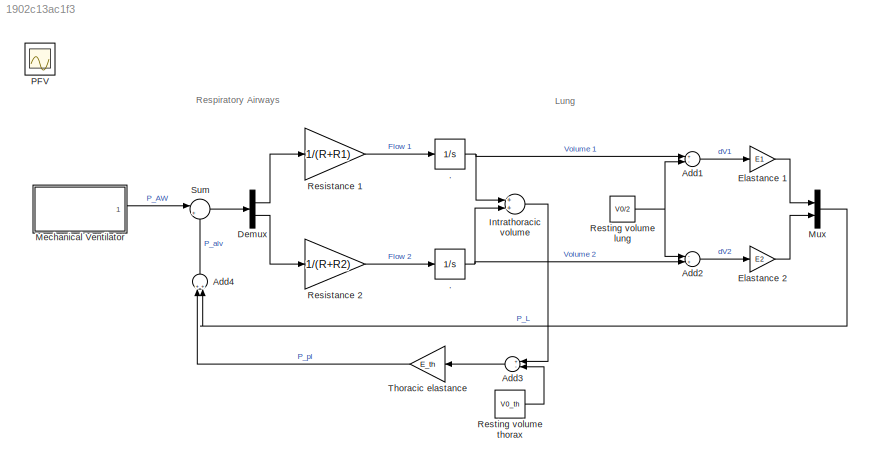
MODEL slx_1902c13ac1f3
KIND model
CONFIG AbsTol = auto
CONFIG EnableMultiTasking = off
CONFIG FixedStep = auto
CONFIG MaxStep = auto
CONFIG MinStep = auto
CONFIG RelTol = 1e-3
CONFIG SampleTimeConstraint = Unconstrained
CONFIG Solver = VariableStepAuto
CONFIG SolverName = VariableStepAuto
CONFIG StartTime = 0.0
CONFIG StopTime = time
BLOCK [Integrator]  .
  Ports = [1, 1]
  ZeroCross = off
BLOCK [Integrator] .
  Ports = [1, 1]
  ZeroCross = off
BLOCK [Sum] Add1
  InputSameDT = off
  Inputs = +-
  OutDataTypeStr = Inherit: Inherit via internal rule
  Ports = [2, 1]
  SaturateOnIntegerOverflow = off
BLOCK [Sum] Add2
  InputSameDT = off
  Inputs = -+
  OutDataTypeStr = Inherit: Inherit via internal rule
  Ports = [2, 1]
  SaturateOnIntegerOverflow = off
BLOCK [Sum] Add3
  InputSameDT = off
  Inputs = +-
  OutDataTypeStr = Inherit: Inherit via internal rule
  Ports = [2, 1]
  SaturateOnIntegerOverflow = off
BLOCK [Sum] Add4
  InputSameDT = off
  OutDataTypeStr = Inherit: Inherit via internal rule
  Ports = [2, 1]
  SaturateOnIntegerOverflow = off
BLOCK [Demux] Demux
  DisplayOption = bar
  Outputs = 2
  Ports = [1, 2]
BLOCK [Gain] Elastance 1
  Gain = E1
  OutDataTypeStr = Inherit: Inherit via internal rule
  ParamDataTypeStr = Inherit: Inherit via internal rule
  SaturateOnIntegerOverflow = off
BLOCK [Gain] Elastance 2
  Gain = E2
  OutDataTypeStr = Inherit: Inherit via internal rule
  ParamDataTypeStr = Inherit: Inherit via internal rule
  SaturateOnIntegerOverflow = off
BLOCK [Sum] Intrathoracic volume  
  InputSameDT = off
  OutDataTypeStr = Inherit: Inherit via internal rule
  Ports = [2, 1]
  SaturateOnIntegerOverflow = off
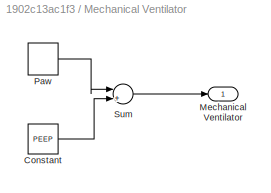
BLOCK [SubSystem] Mechanical Ventilator 
  Ports = [0, 1]
  RequestExecContextInheritance = off
BLOCK [Constant] Mechanical Ventilator /Constant
  SampleTime = 0.1
  Value = PEEP
BLOCK [Outport] Mechanical Ventilator /Mechanical Ventilator
  IconDisplay = Port number
  VectorParamsAs1DForOutWhenUnconnected = off
BLOCK [DiscretePulseGenerator] Mechanical Ventilator /Paw
  Amplitude = Pcontrol
  Period = breath
  PhaseDelay = 2
  Ports = [0, 1]
  PulseType = Time based
  PulseWidth = insptime
  SampleTime = 0.1
BLOCK [Sum] Mechanical Ventilator /Sum
  InputSameDT = off
  Inputs = |++
  OutDataTypeStr = Inherit: Inherit via internal rule
  Ports = [2, 1]
  SaturateOnIntegerOverflow = off
BLOCK [Mux] Mux
  DisplayOption = bar
  Inputs = 2
  Ports = [2, 1]
BLOCK [Scope] PFV
  Floating = off
  IOType = viewer
  NumInputPorts = 1
  Ports = []
  ScopeSpecificationString = Simulink.scopes.TimeScopeBlockCfg('CurrentConfiguration', extmgr.ConfigurationSet(extmgr.Configuration('Core','General UI',true,'FigureColor',[1 1 1]),extmgr.Configuration('Core','Source UI',true),extmgr.Configuration('Sources','WiredSimulink',true),extmgr.Configuration('Visuals','Time Domain',true,'SerializedDisplays',{struct('MinYLimReal','-6.82801','MaxYLimReal','22.98089','YLabelReal','','MinY...<+3648ch>
BLOCK [Gain] Resistance 1
  Gain = 1/(R+R1)
  OutDataTypeStr = Inherit: Inherit via internal rule
  ParamDataTypeStr = Inherit: Inherit via internal rule
  SaturateOnIntegerOverflow = off
BLOCK [Gain] Resistance 2
  Gain = 1/(R+R2)
  OutDataTypeStr = Inherit: Inherit via internal rule
  ParamDataTypeStr = Inherit: Inherit via internal rule
  SaturateOnIntegerOverflow = off
BLOCK [Constant] Resting volume lung 
  Value = V0/2
BLOCK [Constant] Resting volume thorax
  Value = V0_th
BLOCK [Sum] Sum
  IconShape = round
  InputSameDT = off
  Inputs = |+-
  OutDataTypeStr = Inherit: Inherit via internal rule
  Ports = [2, 1]
  SaturateOnIntegerOverflow = off
BLOCK [Gain] Thoracic elastance
  Gain = E_th
  OutDataTypeStr = Inherit: Inherit via internal rule
  ParamDataTypeStr = Inherit: Inherit via internal rule
  SaturateOnIntegerOverflow = off
ANNOTATION (root): Thorax
ANNOTATION (root): Lung
ANNOTATION (root): Respiratory Airways
NET  .:1 -> Add1:1, Intrathoracic volume  :1
NET .:1 -> Add2:2, Intrathoracic volume  :2
LINE Add1:1 -> Elastance 1:1
LINE Add2:1 -> Elastance 2:1
LINE Add3:1 -> Thoracic elastance:1
LINE Add4:1 -> Sum:2
LINE Demux:1 -> Resistance 1:1
LINE Demux:2 -> Resistance 2:1
LINE Elastance 1:1 -> Mux:1
LINE Elastance 2:1 -> Mux:2
LINE Intrathoracic volume  :1 -> Add3:1
LINE Mechanical Ventilator /Constant:1 -> Mechanical Ventilator /Sum:2
LINE Mechanical Ventilator /Paw:1 -> Mechanical Ventilator /Sum:1
LINE Mechanical Ventilator /Sum:1 -> Mechanical Ventilator /Mechanical Ventilator:1
LINE Mechanical Ventilator :1 -> Sum:1
LINE Mux:1 -> Add4:2
LINE Resistance 1:1 ->  .:1
LINE Resistance 2:1 -> .:1
NET Resting volume lung :1 -> Add1:2, Add2:1
LINE Resting volume thorax:1 -> Add3:2
LINE Sum:1 -> Demux:1
LINE Thoracic elastance:1 -> Add4:1
note: NET lines group one-source signal fan-out (src -> all destinations, sorted); 1:1 wires keep LINE
